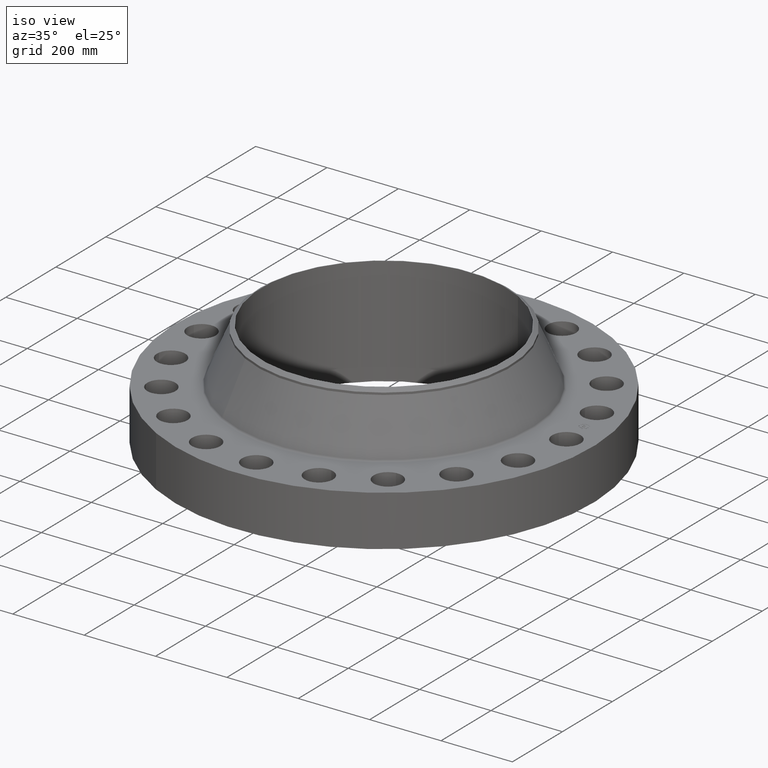
[diagram: clean part render]
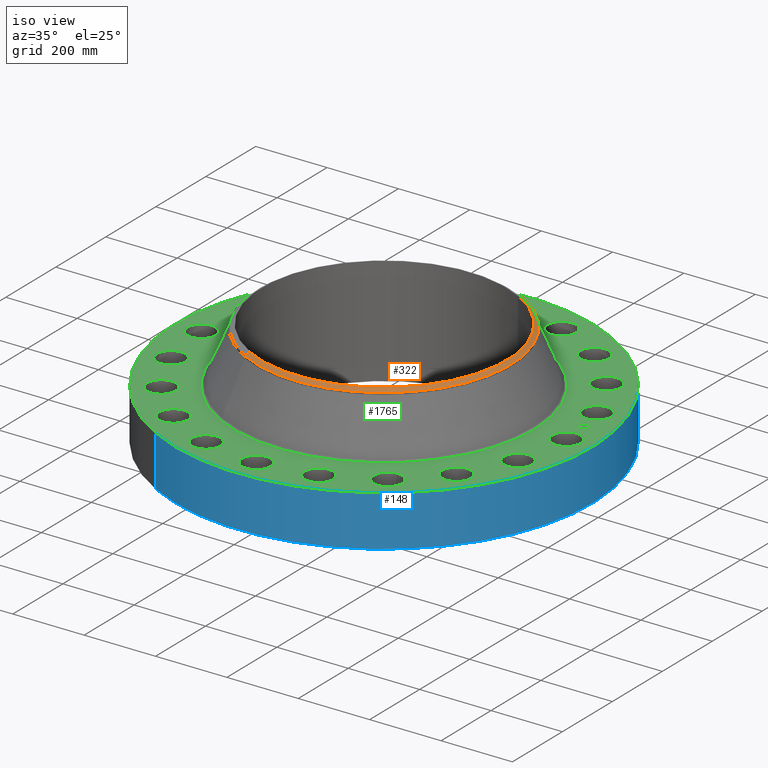
[diagram: same view with three faces highlighted in distinct colors, each labeled with its STEP entity id]
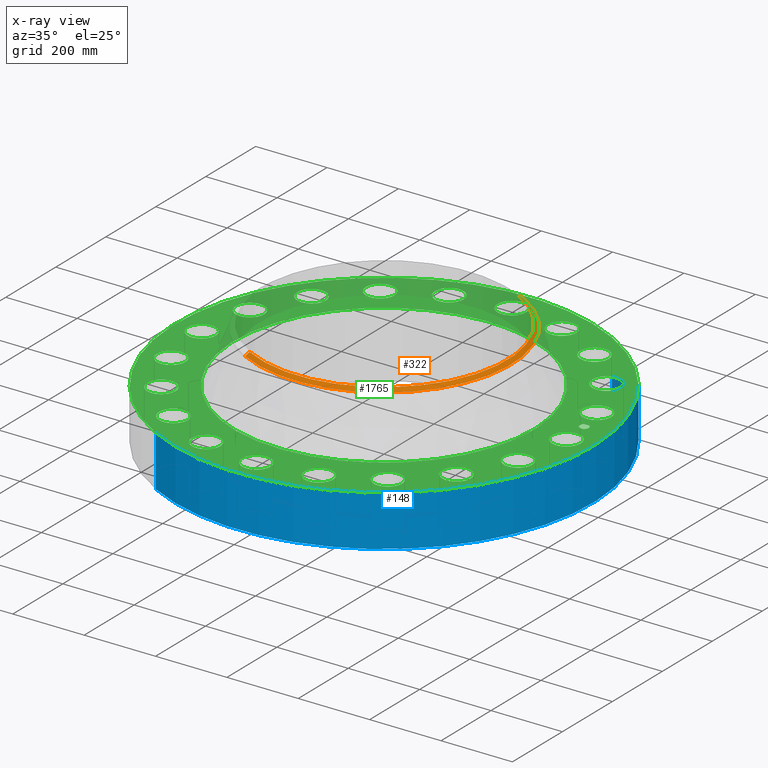
[diagram: x-ray of the same camera — body ghosted, the three highlighted faces saturated]
A machine part, iso view with three faces highlighted in distinct colors.
The next image is the same camera in x-ray (body ghosted, the three faces saturated) — at least one of them is partly hidden behind the body in this view.
Their STEP definitions:

[orange] entity #322 — the highlighted conical surface has half-angle 52.5 deg.
#270=AXIS2_PLACEMENT_3D('Circle Axis2P3D',#268,#269,$) ;
#295=AXIS2_PLACEMENT_3D('Cone Axis2P3D',#292,#293,#294) ;
#306=AXIS2_PLACEMENT_3D('Circle Axis2P3D',#304,#305,$) ;
#258=CARTESIAN_POINT('Vertex',(-6.71195754049,-12.2861558665,11.4142944428)) ;
#265=CARTESIAN_POINT('Vertex',(6.71195754049,12.2861558665,11.4142944428)) ;
#268=CARTESIAN_POINT('Axis2P3D Location',(0.,0.,11.4142944428)) ;
#292=CARTESIAN_POINT('Axis2P3D Location',(0.,0.,11.75)) ;
#297=CARTESIAN_POINT('Line Origine',(6.60708320392,12.0941846811,11.5821472214)) ;
#301=CARTESIAN_POINT('Vertex',(6.50220886735,11.9022134957,11.75)) ;
#304=CARTESIAN_POINT('Axis2P3D Location',(0.,0.,11.75)) ;
#308=CARTESIAN_POINT('Vertex',(-6.50220886735,-11.9022134957,11.75)) ;
#311=CARTESIAN_POINT('Line Origine',(-6.60708320392,-12.0941846811,11.5821472214)) ;
#269=DIRECTION('Axis2P3D Direction',(0.,0.,-0.0393700787402)) ;
#293=DIRECTION('Axis2P3D Direction',(-0.,-0.,-0.0393700787402)) ;
#294=DIRECTION('Axis2P3D XDirection',(-0.0188750212049,-0.0345504945626,0.)) ;
#298=DIRECTION('Vector Direction',(0.014974561121,0.02741075027,-0.023966985394)) ;
#305=DIRECTION('Axis2P3D Direction',(0.,-0.,-0.0393700787402)) ;
#312=DIRECTION('Vector Direction',(-0.014974561121,-0.02741075027,-0.023966985394)) ;
#299=VECTOR('Line Direction',#298,0.0393700787402) ;
#313=VECTOR('Line Direction',#312,0.0393700787402) ;
#317=ORIENTED_EDGE('',*,*,#303,.F.) ;
#318=ORIENTED_EDGE('',*,*,#310,.T.) ;
#319=ORIENTED_EDGE('',*,*,#315,.T.) ;
#320=ORIENTED_EDGE('',*,*,#272,.F.) ;
#322=ADVANCED_FACE('PartBody',(#321),#296,.T.) ;
#271=CIRCLE('generated circle',#270,14.0000000001) ;
#307=CIRCLE('generated circle',#306,13.5625000001) ;
#296=CONICAL_SURFACE('Cone',#295,13.5625000001,0.916297857297) ;
#272=EDGE_CURVE('',#266,#259,#271,.T.) ;
#303=EDGE_CURVE('',#302,#266,#300,.T.) ;
#310=EDGE_CURVE('',#302,#309,#307,.T.) ;
#315=EDGE_CURVE('',#309,#259,#314,.T.) ;
#316=EDGE_LOOP('',(#317,#318,#319,#320)) ;
#321=FACE_OUTER_BOUND('',#316,.T.) ;
#300=LINE('Line',#297,#299) ;
#314=LINE('Line',#311,#313) ;
#259=VERTEX_POINT('',#258) ;
#266=VERTEX_POINT('',#265) ;
#302=VERTEX_POINT('',#301) ;
#309=VERTEX_POINT('',#308) ;

[blue] entity #148 — the highlighted cylindrical surface (partial cylindrical patch) has radius 584.2 mm, axis along (0, 0, -1).
#95=AXIS2_PLACEMENT_3D('Cylinder Axis2P3D',#92,#93,#94) ;
#134=AXIS2_PLACEMENT_3D('Circle Axis2P3D',#132,#133,$) ;
#139=AXIS2_PLACEMENT_3D('Circle Axis2P3D',#137,#138,$) ;
#92=CARTESIAN_POINT('Axis2P3D Location',(0.,0.,5.80000000002)) ;
#101=CARTESIAN_POINT('Vertex',(-11.0267873879,-20.1843989236,2.23792987641E-015)) ;
#103=CARTESIAN_POINT('Vertex',(11.0267873879,20.1843989236,2.23792987641E-015)) ;
#106=CARTESIAN_POINT('Line Origine',(-11.0267873879,-20.1843989236,2.81000000001)) ;
#110=CARTESIAN_POINT('Vertex',(-11.0267873879,-20.1843989236,5.62000000002)) ;
#117=CARTESIAN_POINT('Vertex',(11.0267873879,20.1843989236,5.62000000002)) ;
#120=CARTESIAN_POINT('Line Origine',(11.0267873879,20.1843989236,2.81000000001)) ;
#132=CARTESIAN_POINT('Axis2P3D Location',(0.,0.,2.23792987641E-015)) ;
#137=CARTESIAN_POINT('Axis2P3D Location',(0.,0.,5.62000000002)) ;
#93=DIRECTION('Axis2P3D Direction',(0.,0.,-0.0393700787402)) ;
#94=DIRECTION('Axis2P3D XDirection',(0.0188750212049,0.0345504945626,0.)) ;
#107=DIRECTION('Vector Direction',(0.,0.,-0.0393700787402)) ;
#121=DIRECTION('Vector Direction',(0.,0.,-0.0393700787402)) ;
#133=DIRECTION('Axis2P3D Direction',(0.,0.,-0.0393700787402)) ;
#138=DIRECTION('Axis2P3D Direction',(0.,0.,-0.0393700787402)) ;
#108=VECTOR('Line Direction',#107,0.0393700787402) ;
#122=VECTOR('Line Direction',#121,0.0393700787402) ;
#143=ORIENTED_EDGE('',*,*,#136,.F.) ;
#144=ORIENTED_EDGE('',*,*,#124,.T.) ;
#145=ORIENTED_EDGE('',*,*,#141,.T.) ;
#146=ORIENTED_EDGE('',*,*,#112,.F.) ;
#148=ADVANCED_FACE('PartBody',(#147),#96,.T.) ;
#135=CIRCLE('generated circle',#134,23.0000000001) ;
#140=CIRCLE('generated circle',#139,23.0000000001) ;
#96=CYLINDRICAL_SURFACE('generated cylinder',#95,23.0000000001) ;
#112=EDGE_CURVE('',#102,#111,#109,.F.) ;
#124=EDGE_CURVE('',#104,#118,#123,.F.) ;
#136=EDGE_CURVE('',#104,#102,#135,.T.) ;
#141=EDGE_CURVE('',#118,#111,#140,.T.) ;
#142=EDGE_LOOP('',(#143,#144,#145,#146)) ;
#147=FACE_OUTER_BOUND('',#142,.T.) ;
#109=LINE('Line',#106,#108) ;
#123=LINE('Line',#120,#122) ;
#102=VERTEX_POINT('',#101) ;
#104=VERTEX_POINT('',#103) ;
#111=VERTEX_POINT('',#110) ;
#118=VERTEX_POINT('',#117) ;

[green] entity #1765 — the highlighted planar face has unit normal (0, 0, -1).
#65=AXIS2_PLACEMENT_3D('Circle Axis2P3D',#63,#64,$) ;
#82=AXIS2_PLACEMENT_3D('Circle Axis2P3D',#80,#81,$) ;
#115=AXIS2_PLACEMENT_3D('Circle Axis2P3D',#113,#114,$) ;
#139=AXIS2_PLACEMENT_3D('Circle Axis2P3D',#137,#138,$) ;
#156=AXIS2_PLACEMENT_3D('Circle Axis2P3D',#154,#155,$) ;
#191=AXIS2_PLACEMENT_3D('Circle Axis2P3D',#189,#190,$) ;
#858=AXIS2_PLACEMENT_3D('Circle Axis2P3D',#856,#857,$) ;
#870=AXIS2_PLACEMENT_3D('Circle Axis2P3D',#868,#869,$) ;
#901=AXIS2_PLACEMENT_3D('Circle Axis2P3D',#899,#900,$) ;
#913=AXIS2_PLACEMENT_3D('Circle Axis2P3D',#911,#912,$) ;
#944=AXIS2_PLACEMENT_3D('Circle Axis2P3D',#942,#943,$) ;
#956=AXIS2_PLACEMENT_3D('Circle Axis2P3D',#954,#955,$) ;
#987=AXIS2_PLACEMENT_3D('Circle Axis2P3D',#985,#986,$) ;
#999=AXIS2_PLACEMENT_3D('Circle Axis2P3D',#997,#998,$) ;
#1030=AXIS2_PLACEMENT_3D('Circle Axis2P3D',#1028,#1029,$) ;
#1042=AXIS2_PLACEMENT_3D('Circle Axis2P3D',#1040,#1041,$) ;
#1073=AXIS2_PLACEMENT_3D('Circle Axis2P3D',#1071,#1072,$) ;
#1085=AXIS2_PLACEMENT_3D('Circle Axis2P3D',#1083,#1084,$) ;
#1116=AXIS2_PLACEMENT_3D('Circle Axis2P3D',#1114,#1115,$) ;
#1128=AXIS2_PLACEMENT_3D('Circle Axis2P3D',#1126,#1127,$) ;
#1159=AXIS2_PLACEMENT_3D('Circle Axis2P3D',#1157,#1158,$) ;
#1171=AXIS2_PLACEMENT_3D('Circle Axis2P3D',#1169,#1170,$) ;
#1202=AXIS2_PLACEMENT_3D('Circle Axis2P3D',#1200,#1201,$) ;
#1214=AXIS2_PLACEMENT_3D('Circle Axis2P3D',#1212,#1213,$) ;
#1245=AXIS2_PLACEMENT_3D('Circle Axis2P3D',#1243,#1244,$) ;
#1257=AXIS2_PLACEMENT_3D('Circle Axis2P3D',#1255,#1256,$) ;
#1288=AXIS2_PLACEMENT_3D('Circle Axis2P3D',#1286,#1287,$) ;
#1300=AXIS2_PLACEMENT_3D('Circle Axis2P3D',#1298,#1299,$) ;
#1331=AXIS2_PLACEMENT_3D('Circle Axis2P3D',#1329,#1330,$) ;
#1343=AXIS2_PLACEMENT_3D('Circle Axis2P3D',#1341,#1342,$) ;
#1374=AXIS2_PLACEMENT_3D('Circle Axis2P3D',#1372,#1373,$) ;
#1386=AXIS2_PLACEMENT_3D('Circle Axis2P3D',#1384,#1385,$) ;
#1417=AXIS2_PLACEMENT_3D('Circle Axis2P3D',#1415,#1416,$) ;
#1429=AXIS2_PLACEMENT_3D('Circle Axis2P3D',#1427,#1428,$) ;
#1460=AXIS2_PLACEMENT_3D('Circle Axis2P3D',#1458,#1459,$) ;
#1472=AXIS2_PLACEMENT_3D('Circle Axis2P3D',#1470,#1471,$) ;
#1503=AXIS2_PLACEMENT_3D('Circle Axis2P3D',#1501,#1502,$) ;
#1515=AXIS2_PLACEMENT_3D('Circle Axis2P3D',#1513,#1514,$) ;
#1546=AXIS2_PLACEMENT_3D('Circle Axis2P3D',#1544,#1545,$) ;
#1558=AXIS2_PLACEMENT_3D('Circle Axis2P3D',#1556,#1557,$) ;
#1589=AXIS2_PLACEMENT_3D('Circle Axis2P3D',#1587,#1588,$) ;
#1601=AXIS2_PLACEMENT_3D('Circle Axis2P3D',#1599,#1600,$) ;
#1632=AXIS2_PLACEMENT_3D('Circle Axis2P3D',#1630,#1631,$) ;
#1644=AXIS2_PLACEMENT_3D('Circle Axis2P3D',#1642,#1643,$) ;
#1657=AXIS2_PLACEMENT_3D('Plane Axis2P3D',#1654,#1655,#1656) ;
#1749=AXIS2_PLACEMENT_3D('Circle Axis2P3D',#1747,#1748,$) ;
#1758=AXIS2_PLACEMENT_3D('Circle Axis2P3D',#1756,#1757,$) ;
#46=CARTESIAN_POINT('Vertex',(18.7559712035,0.747903840226,5.62000000002)) ;
#60=CARTESIAN_POINT('Vertex',(21.4940287966,-0.747903840226,5.62000000002)) ;
#63=CARTESIAN_POINT('Axis2P3D Location',(20.1250000001,0.,5.62000000002)) ;
#80=CARTESIAN_POINT('Axis2P3D Location',(20.1250000001,0.,5.62000000002)) ;
#110=CARTESIAN_POINT('Vertex',(-11.0267873879,-20.1843989236,5.62000000002)) ;
#113=CARTESIAN_POINT('Axis2P3D Location',(0.,0.,5.62000000002)) ;
#117=CARTESIAN_POINT('Vertex',(11.0267873879,20.1843989236,5.62000000002)) ;
#137=CARTESIAN_POINT('Axis2P3D Location',(0.,0.,5.62000000002)) ;
#154=CARTESIAN_POINT('Axis2P3D Location',(0.,0.,5.62000000002)) ;
#158=CARTESIAN_POINT('Vertex',(7.92971801133,14.5152514564,5.62000000002)) ;
#160=CARTESIAN_POINT('Vertex',(-7.92971801133,-14.5152514564,5.62000000002)) ;
#189=CARTESIAN_POINT('Axis2P3D Location',(0.,0.,5.62000000002)) ;
#846=CARTESIAN_POINT('Vertex',(-18.0691036293,5.08461502709,5.62000000002)) ;
#853=CARTESIAN_POINT('Vertex',(-20.2109211517,7.35331899655,5.62000000002)) ;
#856=CARTESIAN_POINT('Axis2P3D Location',(-19.1400123905,6.21896701182,5.62000000002)) ;
#868=CARTESIAN_POINT('Axis2P3D Location',(-19.1400123905,6.21896701182,5.62000000002)) ;
#889=CARTESIAN_POINT('Vertex',(15.6135062971,-10.419416349,5.62000000002)) ;
#896=CARTESIAN_POINT('Vertex',(16.9494277266,-13.2389400559,5.62000000002)) ;
#899=CARTESIAN_POINT('Axis2P3D Location',(16.2814670119,-11.8291782024,5.62000000002)) ;
#911=CARTESIAN_POINT('Axis2P3D Location',(16.2814670119,-11.8291782024,5.62000000002)) ;
#932=CARTESIAN_POINT('Vertex',(-15.6135062971,10.419416349,5.62000000002)) ;
#939=CARTESIAN_POINT('Vertex',(-16.9494277266,13.2389400559,5.62000000002)) ;
#942=CARTESIAN_POINT('Axis2P3D Location',(-16.2814670119,11.8291782024,5.62000000002)) ;
#954=CARTESIAN_POINT('Axis2P3D Location',(-16.2814670119,11.8291782024,5.62000000002)) ;
#975=CARTESIAN_POINT('Vertex',(11.6295501828,-14.7342926022,5.62000000002)) ;
#982=CARTESIAN_POINT('Vertex',(12.0288062221,-17.8286414215,5.62000000002)) ;
#985=CARTESIAN_POINT('Axis2P3D Location',(11.8291782024,-16.2814670119,5.62000000002)) ;
#997=CARTESIAN_POINT('Axis2P3D Location',(11.8291782024,-16.2814670119,5.62000000002)) ;
#1018=CARTESIAN_POINT('Vertex',(-11.6295501828,14.7342926022,5.62000000002)) ;
#1025=CARTESIAN_POINT('Vertex',(-12.0288062221,17.8286414215,5.62000000002)) ;
#1028=CARTESIAN_POINT('Axis2P3D Location',(-11.8291782024,16.2814670119,5.62000000002)) ;
#1040=CARTESIAN_POINT('Axis2P3D Location',(-11.8291782024,16.2814670119,5.62000000002)) ;
#1061=CARTESIAN_POINT('Vertex',(6.50721266871,-17.6068736358,5.62000000002)) ;
#1068=CARTESIAN_POINT('Vertex',(5.93072135494,-20.6731511453,5.62000000002)) ;
#1071=CARTESIAN_POINT('Axis2P3D Location',(6.21896701182,-19.1400123905,5.62000000002)) ;
#1083=CARTESIAN_POINT('Axis2P3D Location',(6.21896701182,-19.1400123905,5.62000000002)) ;
#1104=CARTESIAN_POINT('Vertex',(-6.50721266871,17.6068736358,5.62000000002)) ;
#1111=CARTESIAN_POINT('Vertex',(-5.93072135494,20.6731511453,5.62000000002)) ;
#1114=CARTESIAN_POINT('Axis2P3D Location',(-6.21896701182,19.1400123905,5.62000000002)) ;
#1126=CARTESIAN_POINT('Axis2P3D Location',(-6.21896701182,19.1400123905,5.62000000002)) ;
#1147=CARTESIAN_POINT('Vertex',(0.747903840226,-18.7559712035,5.62000000002)) ;
#1154=CARTESIAN_POINT('Vertex',(-0.747903840226,-21.4940287966,5.62000000002)) ;
#1157=CARTESIAN_POINT('Axis2P3D Location',(5.70094851578E-015,-20.1250000001,5.62000000002)) ;
#1169=CARTESIAN_POINT('Axis2P3D Location',(5.70094851578E-015,-20.1250000001,5.62000000002)) ;
#1190=CARTESIAN_POINT('Vertex',(-0.747903840226,18.7559712035,5.62000000002)) ;
#1197=CARTESIAN_POINT('Vertex',(0.747903840226,21.4940287966,5.62000000002)) ;
#1200=CARTESIAN_POINT('Axis2P3D Location',(-2.15714932215E-014,20.1250000001,5.62000000002)) ;
#1212=CARTESIAN_POINT('Axis2P3D Location',(-2.15714932215E-014,20.1250000001,5.62000000002)) ;
#1233=CARTESIAN_POINT('Vertex',(-5.08461502709,-18.0691036293,5.62000000002)) ;
#1240=CARTESIAN_POINT('Vertex',(-7.35331899655,-20.2109211517,5.62000000002)) ;
#1243=CARTESIAN_POINT('Axis2P3D Location',(-6.21896701182,-19.1400123905,5.62000000002)) ;
#1255=CARTESIAN_POINT('Axis2P3D Location',(-6.21896701182,-19.1400123905,5.62000000002)) ;
#1276=CARTESIAN_POINT('Vertex',(5.08461502709,18.0691036293,5.62000000002)) ;
#1283=CARTESIAN_POINT('Vertex',(7.35331899655,20.2109211517,5.62000000002)) ;
#1286=CARTESIAN_POINT('Axis2P3D Location',(6.21896701182,19.1400123905,5.62000000002)) ;
#1298=CARTESIAN_POINT('Axis2P3D Location',(6.21896701182,19.1400123905,5.62000000002)) ;
#1319=CARTESIAN_POINT('Vertex',(-10.419416349,-15.6135062971,5.62000000002)) ;
#1326=CARTESIAN_POINT('Vertex',(-13.2389400559,-16.9494277266,5.62000000002)) ;
#1329=CARTESIAN_POINT('Axis2P3D Location',(-11.8291782024,-16.2814670119,5.62000000002)) ;
#1341=CARTESIAN_POINT('Axis2P3D Location',(-11.8291782024,-16.2814670119,5.62000000002)) ;
#1362=CARTESIAN_POINT('Vertex',(10.419416349,15.6135062971,5.62000000002)) ;
#1369=CARTESIAN_POINT('Vertex',(13.2389400559,16.9494277266,5.62000000002)) ;
#1372=CARTESIAN_POINT('Axis2P3D Location',(11.8291782024,16.2814670119,5.62000000002)) ;
#1384=CARTESIAN_POINT('Axis2P3D Location',(11.8291782024,16.2814670119,5.62000000002)) ;
#1405=CARTESIAN_POINT('Vertex',(-14.7342926022,-11.6295501828,5.62000000002)) ;
#1412=CARTESIAN_POINT('Vertex',(-17.8286414215,-12.0288062221,5.62000000002)) ;
#1415=CARTESIAN_POINT('Axis2P3D Location',(-16.2814670119,-11.8291782024,5.62000000002)) ;
#1427=CARTESIAN_POINT('Axis2P3D Location',(-16.2814670119,-11.8291782024,5.62000000002)) ;
#1448=CARTESIAN_POINT('Vertex',(14.7342926022,11.6295501828,5.62000000002)) ;
#1455=CARTESIAN_POINT('Vertex',(17.8286414215,12.0288062221,5.62000000002)) ;
#1458=CARTESIAN_POINT('Axis2P3D Location',(16.2814670119,11.8291782024,5.62000000002)) ;
#1470=CARTESIAN_POINT('Axis2P3D Location',(16.2814670119,11.8291782024,5.62000000002)) ;
#1491=CARTESIAN_POINT('Vertex',(-17.6068736358,-6.50721266871,5.62000000002)) ;
#1498=CARTESIAN_POINT('Vertex',(-20.6731511453,-5.93072135494,5.62000000002)) ;
#1501=CARTESIAN_POINT('Axis2P3D Location',(-19.1400123905,-6.21896701182,5.62000000002)) ;
#1513=CARTESIAN_POINT('Axis2P3D Location',(-19.1400123905,-6.21896701182,5.62000000002)) ;
#1534=CARTESIAN_POINT('Vertex',(17.6068736358,6.50721266871,5.62000000002)) ;
#1541=CARTESIAN_POINT('Vertex',(20.6731511453,5.93072135494,5.62000000002)) ;
#1544=CARTESIAN_POINT('Axis2P3D Location',(19.1400123905,6.21896701182,5.62000000002)) ;
#1556=CARTESIAN_POINT('Axis2P3D Location',(19.1400123905,6.21896701182,5.62000000002)) ;
#1577=CARTESIAN_POINT('Vertex',(-18.7559712035,-0.747903840226,5.62000000002)) ;
#1584=CARTESIAN_POINT('Vertex',(-21.4940287966,0.747903840226,5.62000000002)) ;
#1587=CARTESIAN_POINT('Axis2P3D Location',(-20.1250000001,-1.14018970316E-014,5.62000000002)) ;
#1599=CARTESIAN_POINT('Axis2P3D Location',(-20.1250000001,-1.14018970316E-014,5.62000000002)) ;
#1620=CARTESIAN_POINT('Vertex',(18.0691036293,-5.08461502709,5.62000000002)) ;
#1627=CARTESIAN_POINT('Vertex',(20.2109211517,-7.35331899655,5.62000000002)) ;
#1630=CARTESIAN_POINT('Axis2P3D Location',(19.1400123905,-6.21896701182,5.62000000002)) ;
#1642=CARTESIAN_POINT('Axis2P3D Location',(19.1400123905,-6.21896701182,5.62000000002)) ;
#1654=CARTESIAN_POINT('Axis2P3D Location',(0.,23.0000000001,5.62000000002)) ;
#1747=CARTESIAN_POINT('Axis2P3D Location',(19.8772278546,3.14824360895,5.62000000002)) ;
#1751=CARTESIAN_POINT('Vertex',(19.7990108013,3.64208664735,5.62000000002)) ;
#1753=CARTESIAN_POINT('Vertex',(19.9554449078,2.65440057054,5.62000000002)) ;
#1756=CARTESIAN_POINT('Axis2P3D Location',(19.8772278546,3.14824360895,5.62000000002)) ;
#64=DIRECTION('Axis2P3D Direction',(0.,-0.,-0.0393700787402)) ;
#81=DIRECTION('Axis2P3D Direction',(0.,-0.,-0.0393700787402)) ;
#114=DIRECTION('Axis2P3D Direction',(0.,0.,-0.0393700787402)) ;
#138=DIRECTION('Axis2P3D Direction',(0.,0.,-0.0393700787402)) ;
#155=DIRECTION('Axis2P3D Direction',(0.,0.,-0.0393700787402)) ;
#190=DIRECTION('Axis2P3D Direction',(0.,0.,-0.0393700787402)) ;
#857=DIRECTION('Axis2P3D Direction',(0.,0.,-0.0393700787402)) ;
#869=DIRECTION('Axis2P3D Direction',(0.,0.,-0.0393700787402)) ;
#900=DIRECTION('Axis2P3D Direction',(0.,-0.,-0.0393700787402)) ;
#912=DIRECTION('Axis2P3D Direction',(0.,-0.,-0.0393700787402)) ;
#943=DIRECTION('Axis2P3D Direction',(0.,0.,-0.0393700787402)) ;
#955=DIRECTION('Axis2P3D Direction',(0.,0.,-0.0393700787402)) ;
#986=DIRECTION('Axis2P3D Direction',(0.,-0.,-0.0393700787402)) ;
#998=DIRECTION('Axis2P3D Direction',(0.,-0.,-0.0393700787402)) ;
#1029=DIRECTION('Axis2P3D Direction',(0.,0.,-0.0393700787402)) ;
#1041=DIRECTION('Axis2P3D Direction',(0.,0.,-0.0393700787402)) ;
#1072=DIRECTION('Axis2P3D Direction',(0.,-0.,-0.0393700787402)) ;
#1084=DIRECTION('Axis2P3D Direction',(0.,-0.,-0.0393700787402)) ;
#1115=DIRECTION('Axis2P3D Direction',(0.,0.,-0.0393700787402)) ;
#1127=DIRECTION('Axis2P3D Direction',(0.,0.,-0.0393700787402)) ;
#1158=DIRECTION('Axis2P3D Direction',(0.,-0.,-0.0393700787402)) ;
#1170=DIRECTION('Axis2P3D Direction',(0.,-0.,-0.0393700787402)) ;
#1201=DIRECTION('Axis2P3D Direction',(0.,0.,-0.0393700787402)) ;
#1213=DIRECTION('Axis2P3D Direction',(0.,0.,-0.0393700787402)) ;
#1244=DIRECTION('Axis2P3D Direction',(-0.,0.,-0.0393700787402)) ;
#1256=DIRECTION('Axis2P3D Direction',(-0.,0.,-0.0393700787402)) ;
#1287=DIRECTION('Axis2P3D Direction',(0.,0.,-0.0393700787402)) ;
#1299=DIRECTION('Axis2P3D Direction',(0.,0.,-0.0393700787402)) ;
#1330=DIRECTION('Axis2P3D Direction',(-0.,0.,-0.0393700787402)) ;
#1342=DIRECTION('Axis2P3D Direction',(-0.,0.,-0.0393700787402)) ;
#1373=DIRECTION('Axis2P3D Direction',(0.,0.,-0.0393700787402)) ;
#1385=DIRECTION('Axis2P3D Direction',(0.,0.,-0.0393700787402)) ;
#1416=DIRECTION('Axis2P3D Direction',(-0.,0.,-0.0393700787402)) ;
#1428=DIRECTION('Axis2P3D Direction',(-0.,0.,-0.0393700787402)) ;
#1459=DIRECTION('Axis2P3D Direction',(0.,0.,-0.0393700787402)) ;
#1471=DIRECTION('Axis2P3D Direction',(0.,0.,-0.0393700787402)) ;
#1502=DIRECTION('Axis2P3D Direction',(-0.,0.,-0.0393700787402)) ;
#1514=DIRECTION('Axis2P3D Direction',(-0.,0.,-0.0393700787402)) ;
#1545=DIRECTION('Axis2P3D Direction',(0.,0.,-0.0393700787402)) ;
#1557=DIRECTION('Axis2P3D Direction',(0.,0.,-0.0393700787402)) ;
#1588=DIRECTION('Axis2P3D Direction',(-0.,0.,-0.0393700787402)) ;
#1600=DIRECTION('Axis2P3D Direction',(-0.,0.,-0.0393700787402)) ;
#1631=DIRECTION('Axis2P3D Direction',(0.,-0.,-0.0393700787402)) ;
#1643=DIRECTION('Axis2P3D Direction',(0.,-0.,-0.0393700787402)) ;
#1655=DIRECTION('Axis2P3D Direction',(0.,0.,-0.0393700787402)) ;
#1656=DIRECTION('Axis2P3D XDirection',(0.0393700787402,0.,0.)) ;
#1748=DIRECTION('Axis2P3D Direction',(0.,0.,-0.0393700787402)) ;
#1757=DIRECTION('Axis2P3D Direction',(0.,0.,-0.0393700787402)) ;
#1660=ORIENTED_EDGE('',*,*,#141,.F.) ;
#1661=ORIENTED_EDGE('',*,*,#119,.F.) ;
#1664=ORIENTED_EDGE('',*,*,#67,.T.) ;
#1665=ORIENTED_EDGE('',*,*,#84,.T.) ;
#1668=ORIENTED_EDGE('',*,*,#193,.T.) ;
#1669=ORIENTED_EDGE('',*,*,#162,.T.) ;
#1672=ORIENTED_EDGE('',*,*,#1646,.T.) ;
#1673=ORIENTED_EDGE('',*,*,#1634,.T.) ;
#1676=ORIENTED_EDGE('',*,*,#915,.T.) ;
#1677=ORIENTED_EDGE('',*,*,#903,.T.) ;
#1680=ORIENTED_EDGE('',*,*,#1001,.T.) ;
#1681=ORIENTED_EDGE('',*,*,#989,.T.) ;
#1684=ORIENTED_EDGE('',*,*,#1087,.T.) ;
#1685=ORIENTED_EDGE('',*,*,#1075,.T.) ;
#1688=ORIENTED_EDGE('',*,*,#1173,.T.) ;
#1689=ORIENTED_EDGE('',*,*,#1161,.T.) ;
#1692=ORIENTED_EDGE('',*,*,#1259,.T.) ;
#1693=ORIENTED_EDGE('',*,*,#1247,.T.) ;
#1696=ORIENTED_EDGE('',*,*,#1345,.T.) ;
#1697=ORIENTED_EDGE('',*,*,#1333,.T.) ;
#1700=ORIENTED_EDGE('',*,*,#1431,.T.) ;
#1701=ORIENTED_EDGE('',*,*,#1419,.T.) ;
#1704=ORIENTED_EDGE('',*,*,#1517,.T.) ;
#1705=ORIENTED_EDGE('',*,*,#1505,.T.) ;
#1708=ORIENTED_EDGE('',*,*,#1603,.T.) ;
#1709=ORIENTED_EDGE('',*,*,#1591,.T.) ;
#1712=ORIENTED_EDGE('',*,*,#872,.T.) ;
#1713=ORIENTED_EDGE('',*,*,#860,.T.) ;
#1716=ORIENTED_EDGE('',*,*,#958,.T.) ;
#1717=ORIENTED_EDGE('',*,*,#946,.T.) ;
#1720=ORIENTED_EDGE('',*,*,#1044,.T.) ;
#1721=ORIENTED_EDGE('',*,*,#1032,.T.) ;
#1724=ORIENTED_EDGE('',*,*,#1130,.T.) ;
#1725=ORIENTED_EDGE('',*,*,#1118,.T.) ;
#1728=ORIENTED_EDGE('',*,*,#1216,.T.) ;
#1729=ORIENTED_EDGE('',*,*,#1204,.T.) ;
#1732=ORIENTED_EDGE('',*,*,#1302,.T.) ;
#1733=ORIENTED_EDGE('',*,*,#1290,.T.) ;
#1736=ORIENTED_EDGE('',*,*,#1388,.T.) ;
#1737=ORIENTED_EDGE('',*,*,#1376,.T.) ;
#1740=ORIENTED_EDGE('',*,*,#1474,.T.) ;
#1741=ORIENTED_EDGE('',*,*,#1462,.T.) ;
#1744=ORIENTED_EDGE('',*,*,#1560,.T.) ;
#1745=ORIENTED_EDGE('',*,*,#1548,.T.) ;
#1762=ORIENTED_EDGE('',*,*,#1755,.T.) ;
#1763=ORIENTED_EDGE('',*,*,#1760,.T.) ;
#1666=FACE_BOUND('',#1663,.T.) ;
#1670=FACE_BOUND('',#1667,.T.) ;
#1674=FACE_BOUND('',#1671,.T.) ;
#1678=FACE_BOUND('',#1675,.T.) ;
#1682=FACE_BOUND('',#1679,.T.) ;
#1686=FACE_BOUND('',#1683,.T.) ;
#1690=FACE_BOUND('',#1687,.T.) ;
#1694=FACE_BOUND('',#1691,.T.) ;
#1698=FACE_BOUND('',#1695,.T.) ;
#1702=FACE_BOUND('',#1699,.T.) ;
#1706=FACE_BOUND('',#1703,.T.) ;
#1710=FACE_BOUND('',#1707,.T.) ;
#1714=FACE_BOUND('',#1711,.T.) ;
#1718=FACE_BOUND('',#1715,.T.) ;
#1722=FACE_BOUND('',#1719,.T.) ;
#1726=FACE_BOUND('',#1723,.T.) ;
#1730=FACE_BOUND('',#1727,.T.) ;
#1734=FACE_BOUND('',#1731,.T.) ;
#1738=FACE_BOUND('',#1735,.T.) ;
#1742=FACE_BOUND('',#1739,.T.) ;
#1746=FACE_BOUND('',#1743,.T.) ;
#1764=FACE_BOUND('',#1761,.T.) ;
#1765=ADVANCED_FACE('PartBody',(#1662,#1666,#1670,#1674,#1678,#1682,#1686,#1690,#1694,#1698,#1702,#1706,#1710,#1714,#1718,#1722,#1726,#1730,#1734,#1738,#1742,#1746,#1764),#1658,.F.) ;
#66=CIRCLE('generated circle',#65,1.56000000001) ;
#83=CIRCLE('generated circle',#82,1.56000000001) ;
#116=CIRCLE('generated circle',#115,23.0000000001) ;
#140=CIRCLE('generated circle',#139,23.0000000001) ;
#157=CIRCLE('generated circle',#156,16.5400408881) ;
#192=CIRCLE('generated circle',#191,16.5400408881) ;
#859=CIRCLE('generated circle',#858,1.56000000001) ;
#871=CIRCLE('generated circle',#870,1.56000000001) ;
#902=CIRCLE('generated circle',#901,1.56000000001) ;
#914=CIRCLE('generated circle',#913,1.56000000001) ;
#945=CIRCLE('generated circle',#944,1.56000000001) ;
#957=CIRCLE('generated circle',#956,1.56000000001) ;
#988=CIRCLE('generated circle',#987,1.56000000001) ;
#1000=CIRCLE('generated circle',#999,1.56000000001) ;
#1031=CIRCLE('generated circle',#1030,1.56000000001) ;
#1043=CIRCLE('generated circle',#1042,1.56000000001) ;
#1074=CIRCLE('generated circle',#1073,1.56000000001) ;
#1086=CIRCLE('generated circle',#1085,1.56000000001) ;
#1117=CIRCLE('generated circle',#1116,1.56000000001) ;
#1129=CIRCLE('generated circle',#1128,1.56000000001) ;
#1160=CIRCLE('generated circle',#1159,1.56000000001) ;
#1172=CIRCLE('generated circle',#1171,1.56000000001) ;
#1203=CIRCLE('generated circle',#1202,1.56000000001) ;
#1215=CIRCLE('generated circle',#1214,1.56000000001) ;
#1246=CIRCLE('generated circle',#1245,1.56000000001) ;
#1258=CIRCLE('generated circle',#1257,1.56000000001) ;
#1289=CIRCLE('generated circle',#1288,1.56000000001) ;
#1301=CIRCLE('generated circle',#1300,1.56000000001) ;
#1332=CIRCLE('generated circle',#1331,1.56000000001) ;
#1344=CIRCLE('generated circle',#1343,1.56000000001) ;
#1375=CIRCLE('generated circle',#1374,1.56000000001) ;
#1387=CIRCLE('generated circle',#1386,1.56000000001) ;
#1418=CIRCLE('generated circle',#1417,1.56000000001) ;
#1430=CIRCLE('generated circle',#1429,1.56000000001) ;
#1461=CIRCLE('generated circle',#1460,1.56000000001) ;
#1473=CIRCLE('generated circle',#1472,1.56000000001) ;
#1504=CIRCLE('generated circle',#1503,1.56000000001) ;
#1516=CIRCLE('generated circle',#1515,1.56000000001) ;
#1547=CIRCLE('generated circle',#1546,1.56000000001) ;
#1559=CIRCLE('generated circle',#1558,1.56000000001) ;
#1590=CIRCLE('generated circle',#1589,1.56000000001) ;
#1602=CIRCLE('generated circle',#1601,1.56000000001) ;
#1633=CIRCLE('generated circle',#1632,1.56000000001) ;
#1645=CIRCLE('generated circle',#1644,1.56000000001) ;
#1750=CIRCLE('generated circle',#1749,0.499998853999) ;
#1759=CIRCLE('generated circle',#1758,0.499998853999) ;
#67=EDGE_CURVE('',#47,#61,#66,.T.) ;
#84=EDGE_CURVE('',#61,#47,#83,.T.) ;
#119=EDGE_CURVE('',#111,#118,#116,.T.) ;
#141=EDGE_CURVE('',#118,#111,#140,.T.) ;
#162=EDGE_CURVE('',#159,#161,#157,.T.) ;
#193=EDGE_CURVE('',#161,#159,#192,.T.) ;
#860=EDGE_CURVE('',#847,#854,#859,.T.) ;
#872=EDGE_CURVE('',#854,#847,#871,.T.) ;
#903=EDGE_CURVE('',#890,#897,#902,.T.) ;
#915=EDGE_CURVE('',#897,#890,#914,.T.) ;
#946=EDGE_CURVE('',#933,#940,#945,.T.) ;
#958=EDGE_CURVE('',#940,#933,#957,.T.) ;
#989=EDGE_CURVE('',#976,#983,#988,.T.) ;
#1001=EDGE_CURVE('',#983,#976,#1000,.T.) ;
#1032=EDGE_CURVE('',#1019,#1026,#1031,.T.) ;
#1044=EDGE_CURVE('',#1026,#1019,#1043,.T.) ;
#1075=EDGE_CURVE('',#1062,#1069,#1074,.T.) ;
#1087=EDGE_CURVE('',#1069,#1062,#1086,.T.) ;
#1118=EDGE_CURVE('',#1105,#1112,#1117,.T.) ;
#1130=EDGE_CURVE('',#1112,#1105,#1129,.T.) ;
#1161=EDGE_CURVE('',#1148,#1155,#1160,.T.) ;
#1173=EDGE_CURVE('',#1155,#1148,#1172,.T.) ;
#1204=EDGE_CURVE('',#1191,#1198,#1203,.T.) ;
#1216=EDGE_CURVE('',#1198,#1191,#1215,.T.) ;
#1247=EDGE_CURVE('',#1234,#1241,#1246,.T.) ;
#1259=EDGE_CURVE('',#1241,#1234,#1258,.T.) ;
#1290=EDGE_CURVE('',#1277,#1284,#1289,.T.) ;
#1302=EDGE_CURVE('',#1284,#1277,#1301,.T.) ;
#1333=EDGE_CURVE('',#1320,#1327,#1332,.T.) ;
#1345=EDGE_CURVE('',#1327,#1320,#1344,.T.) ;
#1376=EDGE_CURVE('',#1363,#1370,#1375,.T.) ;
#1388=EDGE_CURVE('',#1370,#1363,#1387,.T.) ;
#1419=EDGE_CURVE('',#1406,#1413,#1418,.T.) ;
#1431=EDGE_CURVE('',#1413,#1406,#1430,.T.) ;
#1462=EDGE_CURVE('',#1449,#1456,#1461,.T.) ;
#1474=EDGE_CURVE('',#1456,#1449,#1473,.T.) ;
#1505=EDGE_CURVE('',#1492,#1499,#1504,.T.) ;
#1517=EDGE_CURVE('',#1499,#1492,#1516,.T.) ;
#1548=EDGE_CURVE('',#1535,#1542,#1547,.T.) ;
#1560=EDGE_CURVE('',#1542,#1535,#1559,.T.) ;
#1591=EDGE_CURVE('',#1578,#1585,#1590,.T.) ;
#1603=EDGE_CURVE('',#1585,#1578,#1602,.T.) ;
#1634=EDGE_CURVE('',#1621,#1628,#1633,.T.) ;
#1646=EDGE_CURVE('',#1628,#1621,#1645,.T.) ;
#1755=EDGE_CURVE('',#1752,#1754,#1750,.T.) ;
#1760=EDGE_CURVE('',#1754,#1752,#1759,.T.) ;
#1659=EDGE_LOOP('',(#1660,#1661)) ;
#1663=EDGE_LOOP('',(#1664,#1665)) ;
#1667=EDGE_LOOP('',(#1668,#1669)) ;
#1671=EDGE_LOOP('',(#1672,#1673)) ;
#1675=EDGE_LOOP('',(#1676,#1677)) ;
#1679=EDGE_LOOP('',(#1680,#1681)) ;
#1683=EDGE_LOOP('',(#1684,#1685)) ;
#1687=EDGE_LOOP('',(#1688,#1689)) ;
#1691=EDGE_LOOP('',(#1692,#1693)) ;
#1695=EDGE_LOOP('',(#1696,#1697)) ;
#1699=EDGE_LOOP('',(#1700,#1701)) ;
#1703=EDGE_LOOP('',(#1704,#1705)) ;
#1707=EDGE_LOOP('',(#1708,#1709)) ;
#1711=EDGE_LOOP('',(#1712,#1713)) ;
#1715=EDGE_LOOP('',(#1716,#1717)) ;
#1719=EDGE_LOOP('',(#1720,#1721)) ;
#1723=EDGE_LOOP('',(#1724,#1725)) ;
#1727=EDGE_LOOP('',(#1728,#1729)) ;
#1731=EDGE_LOOP('',(#1732,#1733)) ;
#1735=EDGE_LOOP('',(#1736,#1737)) ;
#1739=EDGE_LOOP('',(#1740,#1741)) ;
#1743=EDGE_LOOP('',(#1744,#1745)) ;
#1761=EDGE_LOOP('',(#1762,#1763)) ;
#1662=FACE_OUTER_BOUND('',#1659,.T.) ;
#1658=PLANE('',#1657) ;
#47=VERTEX_POINT('',#46) ;
#61=VERTEX_POINT('',#60) ;
#111=VERTEX_POINT('',#110) ;
#118=VERTEX_POINT('',#117) ;
#159=VERTEX_POINT('',#158) ;
#161=VERTEX_POINT('',#160) ;
#847=VERTEX_POINT('',#846) ;
#854=VERTEX_POINT('',#853) ;
#890=VERTEX_POINT('',#889) ;
#897=VERTEX_POINT('',#896) ;
#933=VERTEX_POINT('',#932) ;
#940=VERTEX_POINT('',#939) ;
#976=VERTEX_POINT('',#975) ;
#983=VERTEX_POINT('',#982) ;
#1019=VERTEX_POINT('',#1018) ;
#1026=VERTEX_POINT('',#1025) ;
#1062=VERTEX_POINT('',#1061) ;
#1069=VERTEX_POINT('',#1068) ;
#1105=VERTEX_POINT('',#1104) ;
#1112=VERTEX_POINT('',#1111) ;
#1148=VERTEX_POINT('',#1147) ;
#1155=VERTEX_POINT('',#1154) ;
#1191=VERTEX_POINT('',#1190) ;
#1198=VERTEX_POINT('',#1197) ;
#1234=VERTEX_POINT('',#1233) ;
#1241=VERTEX_POINT('',#1240) ;
#1277=VERTEX_POINT('',#1276) ;
#1284=VERTEX_POINT('',#1283) ;
#1320=VERTEX_POINT('',#1319) ;
#1327=VERTEX_POINT('',#1326) ;
#1363=VERTEX_POINT('',#1362) ;
#1370=VERTEX_POINT('',#1369) ;
#1406=VERTEX_POINT('',#1405) ;
#1413=VERTEX_POINT('',#1412) ;
#1449=VERTEX_POINT('',#1448) ;
#1456=VERTEX_POINT('',#1455) ;
#1492=VERTEX_POINT('',#1491) ;
#1499=VERTEX_POINT('',#1498) ;
#1535=VERTEX_POINT('',#1534) ;
#1542=VERTEX_POINT('',#1541) ;
#1578=VERTEX_POINT('',#1577) ;
#1585=VERTEX_POINT('',#1584) ;
#1621=VERTEX_POINT('',#1620) ;
#1628=VERTEX_POINT('',#1627) ;
#1752=VERTEX_POINT('',#1751) ;
#1754=VERTEX_POINT('',#1753) ;